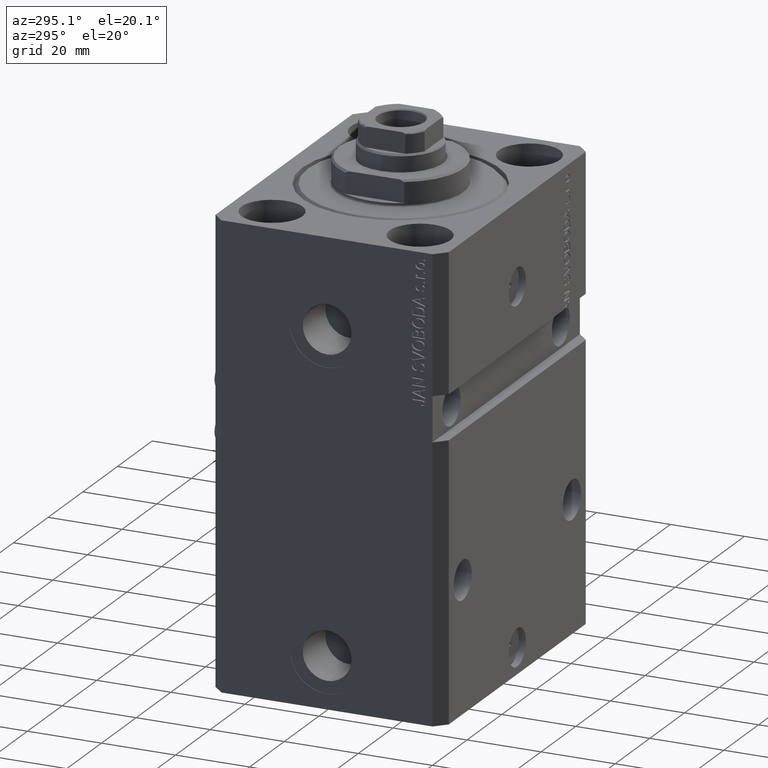
[diagram: clean part render]
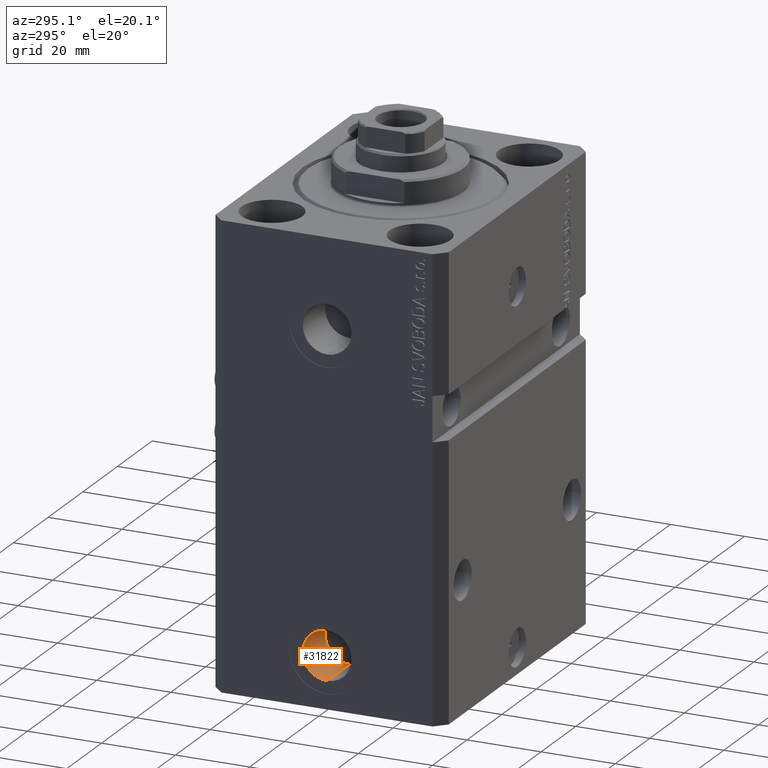
[diagram: same view with one face highlighted and labeled with its STEP entity id]
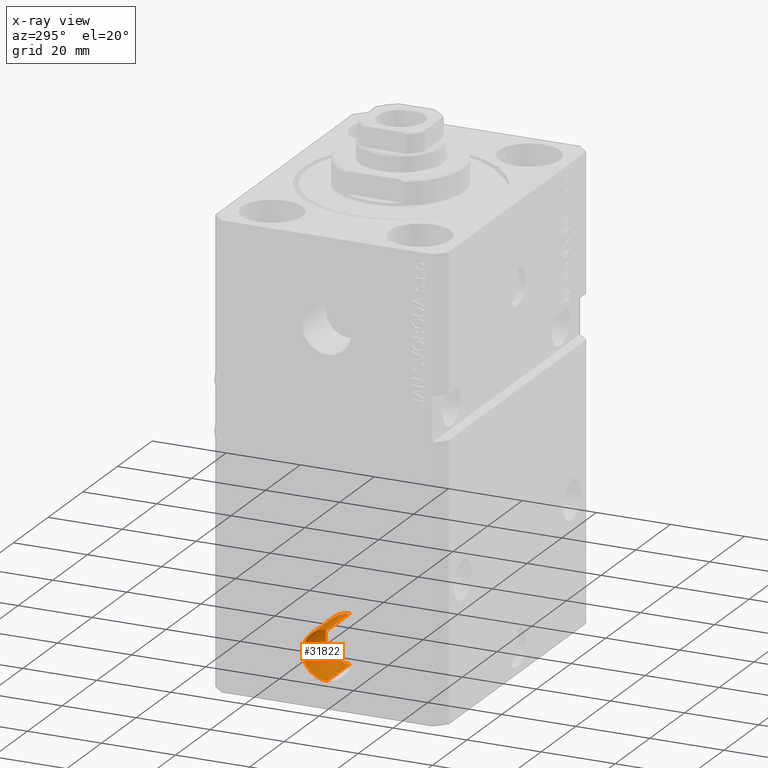
[diagram: x-ray of the same camera — body ghosted, the highlighted face saturated]
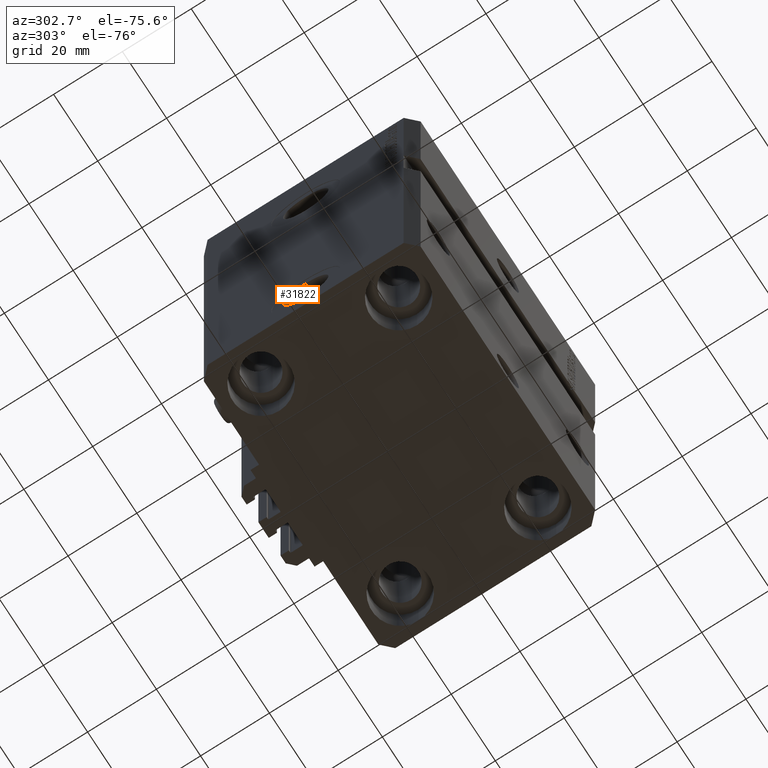
[diagram: same view with one face highlighted and labeled with its STEP entity id]
A machine part, auxiliary view. The second image highlights one B-rep face of the part: STEP entity #31822.
The next image is the same camera in x-ray: the body ghosted, the highlighted face saturated — about 0% of this face is hidden behind the body in this view.
A second angle (auxiliary view) of the same face is appended — the face is thin or edge-on in the first view.
In plain terms, the highlighted cylindrical surface (edge-blend (fillet) strip) has radius 6.58 mm, axis along (-1, -0, -0).
Its self-contained STEP definition (entity closure, byte-faithful):
#805 = ORIENTED_EDGE ( 'NONE', *, *, #24340, .T. ) ;
#1248 = CARTESIAN_POINT ( 'NONE',  ( -29.40000000000000213, -1.334865011070615008E-14, -102.4200000000000017 ) ) ;
#3073 = CARTESIAN_POINT ( 'NONE',  ( -42.39999999999999858, -1.334865011070615008E-14, -109.0000000000000000 ) ) ;
#3469 = CARTESIAN_POINT ( 'NONE',  ( -42.39999999999999858, -1.254283251686719104E-14, -115.5799999999999983 ) ) ;
#4839 = EDGE_LOOP ( 'NONE', ( #5715, #34476, #805, #43362 ) ) ;
#5085 = AXIS2_PLACEMENT_3D ( 'NONE', #21524, #32109, #39958 ) ;
#5715 = ORIENTED_EDGE ( 'NONE', *, *, #20635, .F. ) ;
#6065 = VERTEX_POINT ( 'NONE', #22489 ) ;
#7722 = VERTEX_POINT ( 'NONE', #14704 ) ;
#10478 = DIRECTION ( 'NONE',  ( -1.000000000000000000, 0.000000000000000000, 0.000000000000000000 ) ) ;
#12836 = DIRECTION ( 'NONE',  ( -1.000000000000000000, -0.000000000000000000, -0.000000000000000000 ) ) ;
#13415 = VERTEX_POINT ( 'NONE', #44631 ) ;
#14704 = CARTESIAN_POINT ( 'NONE',  ( -29.40000000000000213, -1.334865011070615008E-14, -102.4200000000000017 ) ) ;
#15229 = FACE_OUTER_BOUND ( 'NONE', #4839, .T. ) ;
#16424 = EDGE_CURVE ( 'NONE', #7722, #13415, #18458, .T. ) ;
#17766 = VERTEX_POINT ( 'NONE', #3469 ) ;
#18160 = AXIS2_PLACEMENT_3D ( 'NONE', #3073, #10478, #24775 ) ;
#18458 = CIRCLE ( 'NONE', #5085, 6.580000000000002736 ) ;
#18888 = LINE ( 'NONE', #22823, #35793 ) ;
#20365 = AXIS2_PLACEMENT_3D ( 'NONE', #29503, #23107, #45448 ) ;
#20635 = EDGE_CURVE ( 'NONE', #13415, #17766, #18888, .T. ) ;
#21524 = CARTESIAN_POINT ( 'NONE',  ( -29.40000000000000213, -1.334865011070615008E-14, -109.0000000000000000 ) ) ;
#22489 = CARTESIAN_POINT ( 'NONE',  ( -42.39999999999999858, -1.334865011070615008E-14, -102.4200000000000017 ) ) ;
#22627 = CYLINDRICAL_SURFACE ( 'NONE', #20365, 6.580000000000002736 ) ;
#22823 = CARTESIAN_POINT ( 'NONE',  ( -29.40000000000000213, -1.254283251686719104E-14, -115.5799999999999983 ) ) ;
#23107 = DIRECTION ( 'NONE',  ( -1.000000000000000000, -0.000000000000000000, -0.000000000000000000 ) ) ;
#24340 = EDGE_CURVE ( 'NONE', #7722, #6065, #28093, .T. ) ;
#24775 = DIRECTION ( 'NONE',  ( 0.000000000000000000, 0.000000000000000000, 1.000000000000000000 ) ) ;
#28093 = LINE ( 'NONE', #1248, #36704 ) ;
#29503 = CARTESIAN_POINT ( 'NONE',  ( -29.40000000000000213, -1.334865011070615008E-14, -109.0000000000000000 ) ) ;
#30920 = DIRECTION ( 'NONE',  ( -1.000000000000000000, -0.000000000000000000, -0.000000000000000000 ) ) ;
#31822 = ADVANCED_FACE ( 'NONE', ( #15229 ), #22627, .F. ) ;
#32109 = DIRECTION ( 'NONE',  ( -1.000000000000000000, 0.000000000000000000, 0.000000000000000000 ) ) ;
#34476 = ORIENTED_EDGE ( 'NONE', *, *, #16424, .F. ) ;
#35046 = EDGE_CURVE ( 'NONE', #6065, #17766, #46392, .T. ) ;
#35793 = VECTOR ( 'NONE', #30920, 1000.000000000000000 ) ;
#36704 = VECTOR ( 'NONE', #12836, 1000.000000000000000 ) ;
#39958 = DIRECTION ( 'NONE',  ( 0.000000000000000000, 0.000000000000000000, 1.000000000000000000 ) ) ;
#43362 = ORIENTED_EDGE ( 'NONE', *, *, #35046, .T. ) ;
#44631 = CARTESIAN_POINT ( 'NONE',  ( -29.40000000000000213, -1.254283251686719104E-14, -115.5799999999999983 ) ) ;
#45448 = DIRECTION ( 'NONE',  ( 0.000000000000000000, 0.000000000000000000, 1.000000000000000000 ) ) ;
#46392 = CIRCLE ( 'NONE', #18160, 6.580000000000002736 ) ;